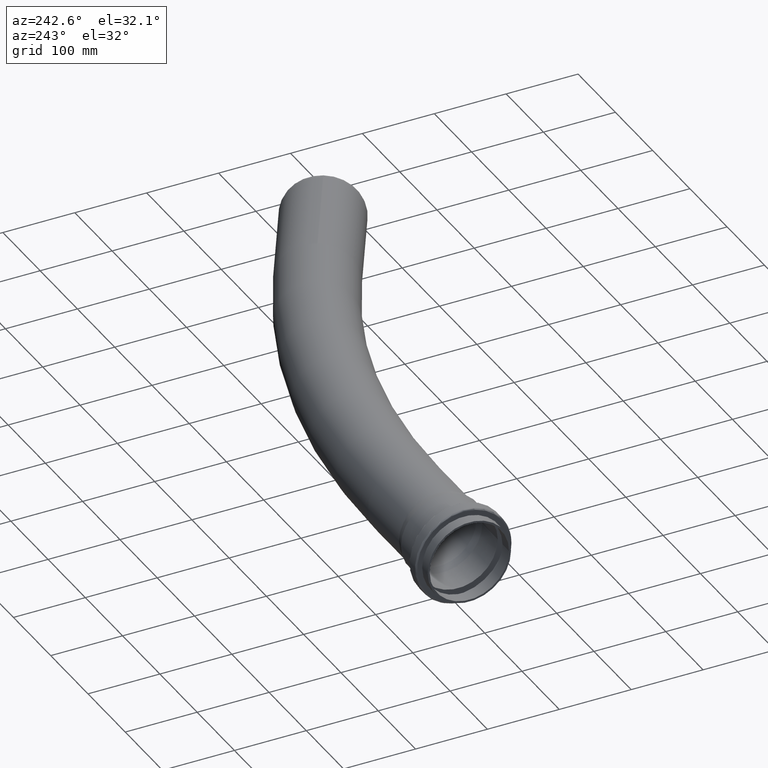
[diagram: clean part render]
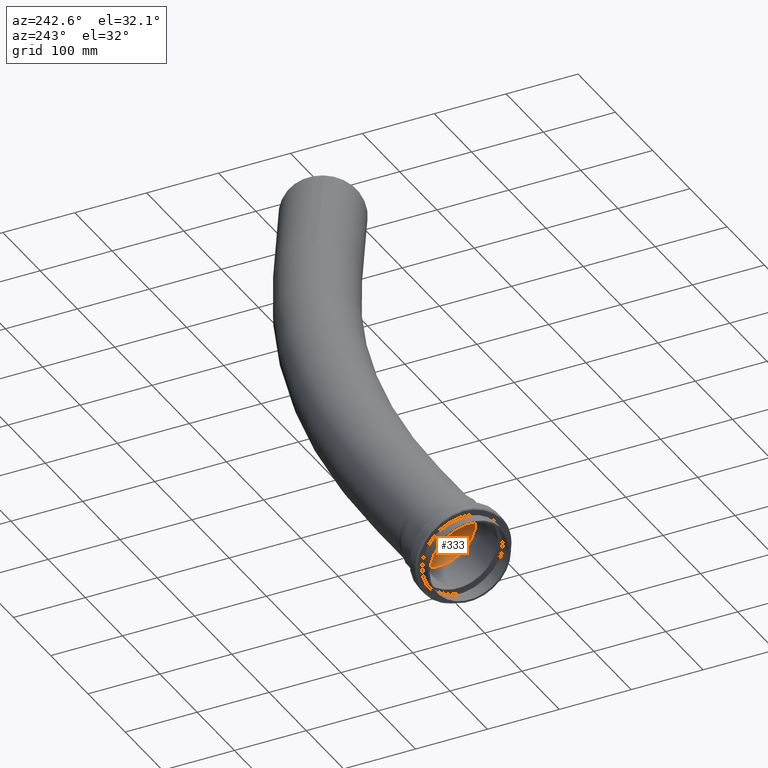
[diagram: same view with one face highlighted and labeled with its STEP entity id]
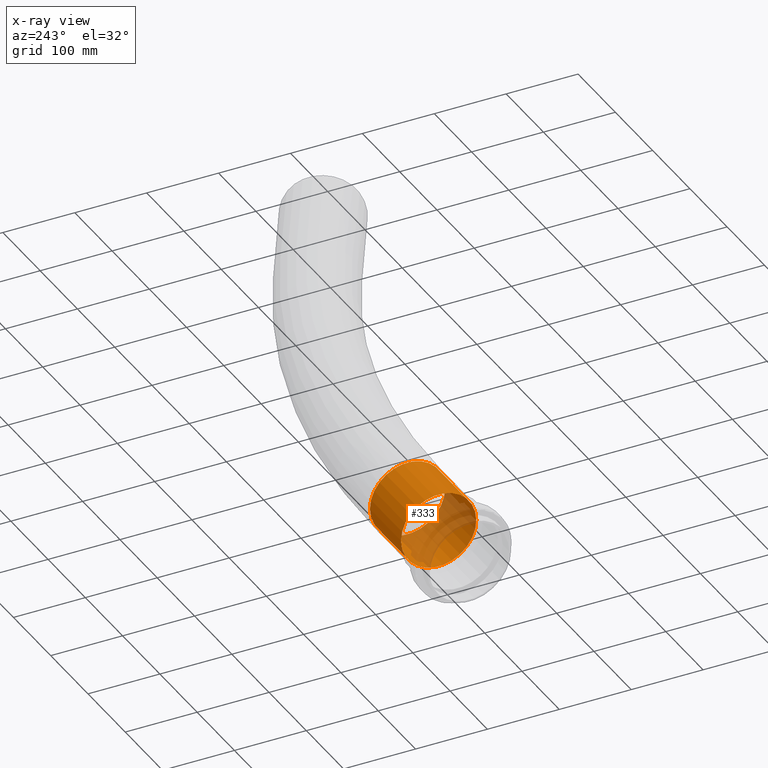
[diagram: x-ray of the same camera — body ghosted, the highlighted face saturated]
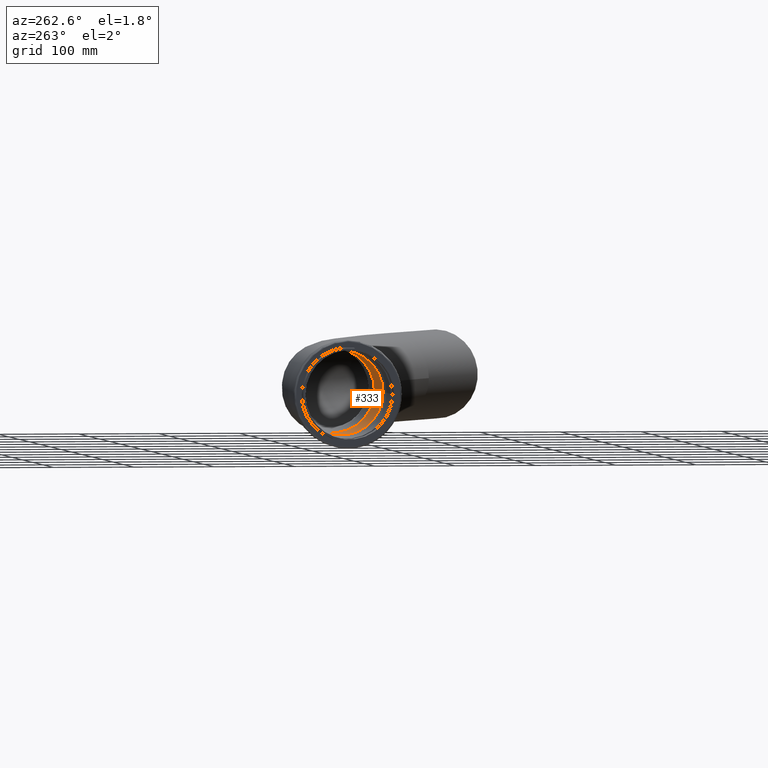
[diagram: same view with one face highlighted and labeled with its STEP entity id]
A machine part, auxiliary view. The second image highlights one B-rep face of the part: STEP entity #333.
The next image is the same camera in x-ray: the body ghosted, the highlighted face saturated — about 30% of this face is hidden behind the body in this view.
A second angle (auxiliary view) of the same face is appended — the face is thin or edge-on in the first view.
In plain terms, the highlighted cylindrical surface (bore or boss wall) has radius 52.3 mm, axis along (1, 0, 0).
Its self-contained STEP definition (entity closure, byte-faithful):
#36=CYLINDRICAL_SURFACE('',#407,52.3);
#57=FACE_OUTER_BOUND('',#85,.T.);
#85=EDGE_LOOP('',(#288,#289,#290,#291));
#100=LINE('',#620,#113);
#113=VECTOR('',#517,52.3);
#127=CIRCLE('',#376,52.3);
#146=CIRCLE('',#406,52.3);
#159=VERTEX_POINT('',#568);
#174=VERTEX_POINT('',#616);
#190=EDGE_CURVE('',#159,#159,#127,.T.);
#212=EDGE_CURVE('',#174,#174,#146,.T.);
#214=EDGE_CURVE('',#174,#159,#100,.T.);
#288=ORIENTED_EDGE('',*,*,#212,.F.);
#289=ORIENTED_EDGE('',*,*,#214,.T.);
#290=ORIENTED_EDGE('',*,*,#190,.F.);
#291=ORIENTED_EDGE('',*,*,#214,.F.);
#333=ADVANCED_FACE('',(#57),#36,.F.);
#376=AXIS2_PLACEMENT_3D('',#569,#449,#450);
#406=AXIS2_PLACEMENT_3D('',#617,#512,#513);
#407=AXIS2_PLACEMENT_3D('',#619,#515,#516);
#449=DIRECTION('center_axis',(-1.,0.,0.));
#450=DIRECTION('ref_axis',(0.,1.,0.));
#512=DIRECTION('center_axis',(1.,0.,0.));
#513=DIRECTION('ref_axis',(0.,1.,0.));
#515=DIRECTION('center_axis',(1.,0.,0.));
#516=DIRECTION('ref_axis',(0.,1.,0.));
#517=DIRECTION('',(1.,0.,0.));
#568=CARTESIAN_POINT('',(7.27500000000004,-52.3,6.40490275954066E-15));
#569=CARTESIAN_POINT('Origin',(7.27500000000004,0.,0.));
#616=CARTESIAN_POINT('',(-76.2575144015362,-52.3,-6.40490275954066E-15));
#617=CARTESIAN_POINT('Origin',(-76.2575144015362,0.,0.));
#619=CARTESIAN_POINT('Origin',(-34.3135263290251,0.,0.));
#620=CARTESIAN_POINT('',(-34.3135263290251,-52.3,-6.40490275954066E-15));